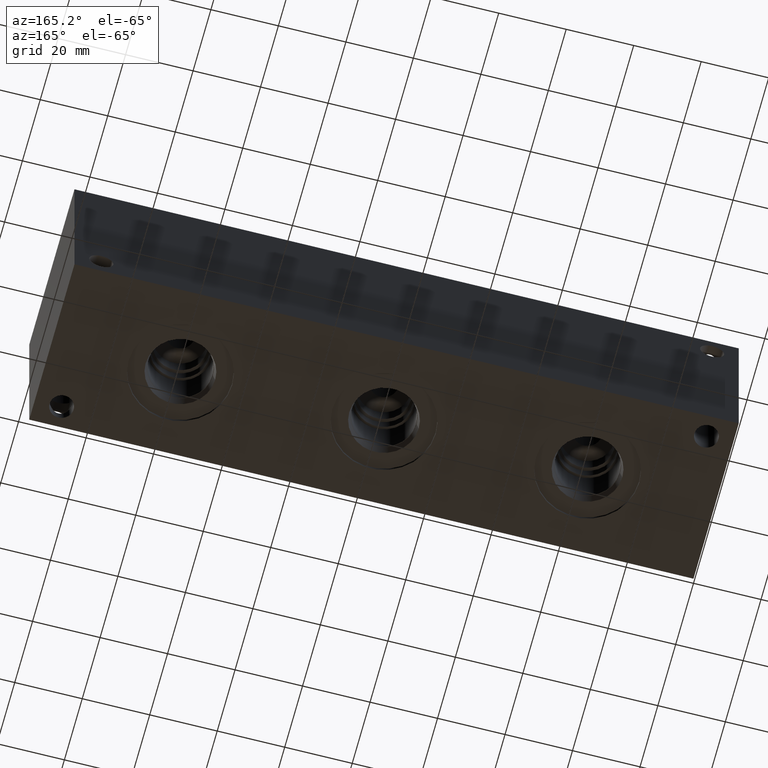
[diagram: clean part render]
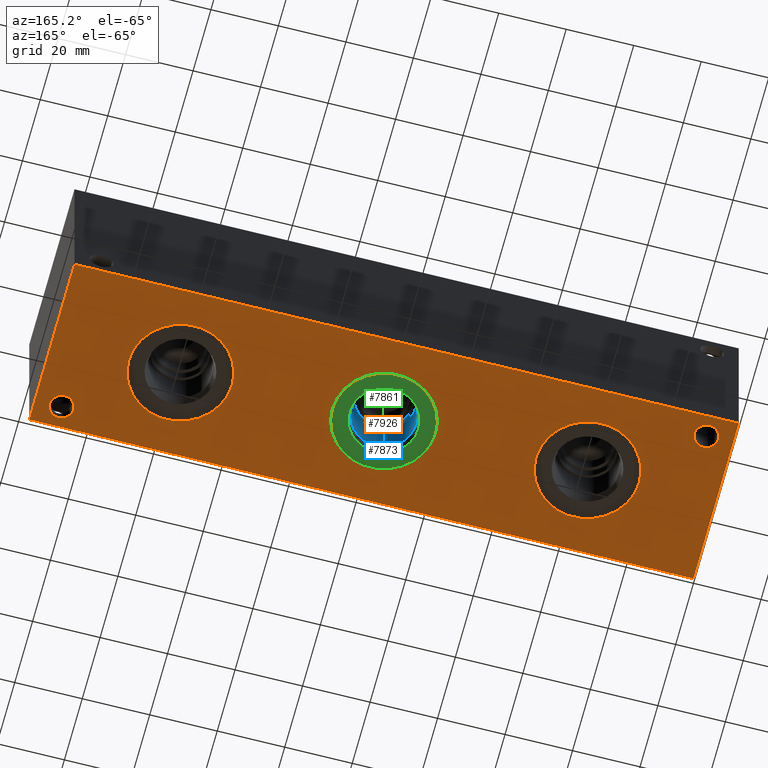
[diagram: same view with three faces highlighted in distinct colors, each labeled with its STEP entity id]
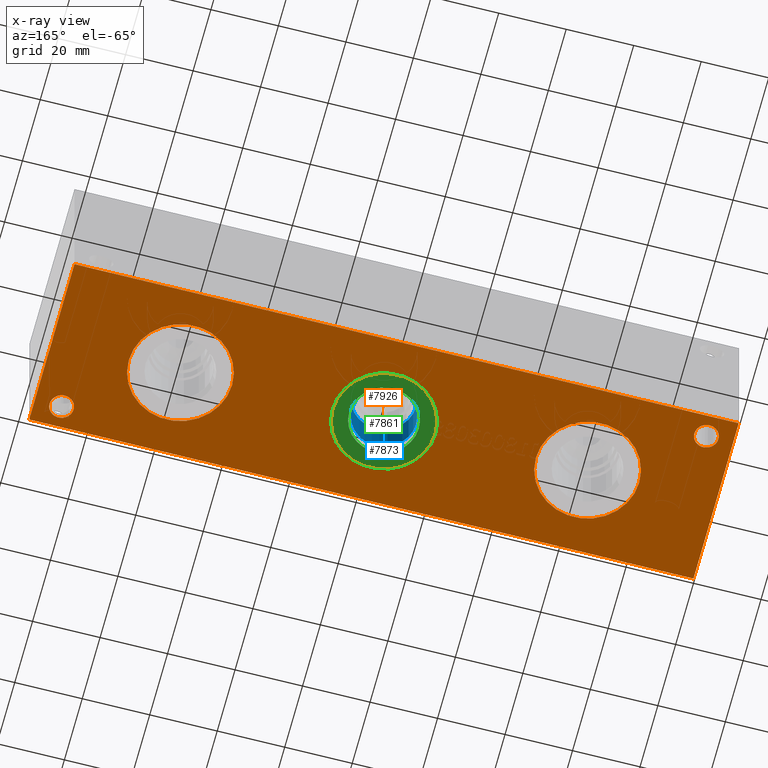
[diagram: x-ray of the same camera — body ghosted, the three highlighted faces saturated]
A machine part, auxiliary view with three faces highlighted in distinct colors.
The next image is the same camera in x-ray (body ghosted, the three faces saturated) — at least one of them is partly hidden behind the body in this view.
Their STEP definitions:

[orange] entity #7926 — the highlighted planar face has unit normal (0, 0, 1).
#100=CIRCLE('',#8175,3.5687);
#101=CIRCLE('',#8177,3.5687);
#102=CIRCLE('',#8179,15.3162);
#103=CIRCLE('',#8180,15.3162);
#113=CIRCLE('',#8195,15.3162);
#114=CIRCLE('',#8196,15.3162);
#152=CIRCLE('',#8257,15.3162);
#153=CIRCLE('',#8258,15.3162);
#263=FACE_BOUND('',#1351,.T.);
#264=FACE_BOUND('',#1352,.T.);
#265=FACE_BOUND('',#1353,.T.);
#266=FACE_BOUND('',#1354,.T.);
#267=FACE_BOUND('',#1355,.T.);
#488=PLANE('',#8360);
#894=FACE_OUTER_BOUND('',#1350,.T.);
#1350=EDGE_LOOP('',(#7069,#7070,#7071,#7072));
#1351=EDGE_LOOP('',(#7073));
#1352=EDGE_LOOP('',(#7074));
#1353=EDGE_LOOP('',(#7075,#7076));
#1354=EDGE_LOOP('',(#7077,#7078));
#1355=EDGE_LOOP('',(#7079,#7080));
#2067=LINE('',#13750,#2786);
#2070=LINE('',#13755,#2789);
#2072=LINE('',#13759,#2791);
#2074=LINE('',#13762,#2793);
#2786=VECTOR('',#9904,10.);
#2789=VECTOR('',#9909,10.);
#2791=VECTOR('',#9913,10.);
#2793=VECTOR('',#9917,10.);
#3658=VERTEX_POINT('',#13398);
#3659=VERTEX_POINT('',#13402);
#3660=VERTEX_POINT('',#13406);
#3661=VERTEX_POINT('',#13407);
#3671=VERTEX_POINT('',#13437);
#3672=VERTEX_POINT('',#13438);
#3710=VERTEX_POINT('',#13557);
#3711=VERTEX_POINT('',#13558);
#3771=VERTEX_POINT('',#13748);
#3772=VERTEX_POINT('',#13749);
#3773=VERTEX_POINT('',#13754);
#3774=VERTEX_POINT('',#13758);
#4701=EDGE_CURVE('',#3658,#3658,#100,.T.);
#4703=EDGE_CURVE('',#3659,#3659,#101,.T.);
#4704=EDGE_CURVE('',#3660,#3661,#102,.T.);
#4705=EDGE_CURVE('',#3661,#3660,#103,.T.);
#4719=EDGE_CURVE('',#3671,#3672,#113,.T.);
#4720=EDGE_CURVE('',#3672,#3671,#114,.T.);
#4777=EDGE_CURVE('',#3710,#3711,#152,.T.);
#4778=EDGE_CURVE('',#3711,#3710,#153,.T.);
#4869=EDGE_CURVE('',#3771,#3772,#2067,.T.);
#4872=EDGE_CURVE('',#3773,#3771,#2070,.T.);
#4874=EDGE_CURVE('',#3774,#3773,#2072,.T.);
#4876=EDGE_CURVE('',#3772,#3774,#2074,.T.);
#7069=ORIENTED_EDGE('',*,*,#4876,.F.);
#7070=ORIENTED_EDGE('',*,*,#4869,.F.);
#7071=ORIENTED_EDGE('',*,*,#4872,.F.);
#7072=ORIENTED_EDGE('',*,*,#4874,.F.);
#7073=ORIENTED_EDGE('',*,*,#4701,.T.);
#7074=ORIENTED_EDGE('',*,*,#4703,.T.);
#7075=ORIENTED_EDGE('',*,*,#4704,.T.);
#7076=ORIENTED_EDGE('',*,*,#4705,.T.);
#7077=ORIENTED_EDGE('',*,*,#4719,.T.);
#7078=ORIENTED_EDGE('',*,*,#4720,.T.);
#7079=ORIENTED_EDGE('',*,*,#4777,.T.);
#7080=ORIENTED_EDGE('',*,*,#4778,.T.);
#7926=ADVANCED_FACE('',(#894,#263,#264,#265,#266,#267),#488,.F.);
#8175=AXIS2_PLACEMENT_3D('',#13400,#9487,#9488);
#8177=AXIS2_PLACEMENT_3D('',#13404,#9492,#9493);
#8179=AXIS2_PLACEMENT_3D('',#13408,#9496,#9497);
#8180=AXIS2_PLACEMENT_3D('',#13409,#9498,#9499);
#8195=AXIS2_PLACEMENT_3D('',#13439,#9532,#9533);
#8196=AXIS2_PLACEMENT_3D('',#13440,#9534,#9535);
#8257=AXIS2_PLACEMENT_3D('',#13559,#9675,#9676);
#8258=AXIS2_PLACEMENT_3D('',#13560,#9677,#9678);
#8360=AXIS2_PLACEMENT_3D('',#13764,#9920,#9921);
#9487=DIRECTION('center_axis',(0.,0.,1.));
#9488=DIRECTION('ref_axis',(1.,0.,0.));
#9492=DIRECTION('center_axis',(0.,0.,1.));
#9493=DIRECTION('ref_axis',(1.,0.,0.));
#9496=DIRECTION('center_axis',(0.,0.,1.));
#9497=DIRECTION('ref_axis',(1.,0.,0.));
#9498=DIRECTION('center_axis',(0.,0.,1.));
#9499=DIRECTION('ref_axis',(1.,0.,0.));
#9532=DIRECTION('center_axis',(0.,0.,1.));
#9533=DIRECTION('ref_axis',(1.,0.,0.));
#9534=DIRECTION('center_axis',(0.,0.,1.));
#9535=DIRECTION('ref_axis',(1.,0.,0.));
#9675=DIRECTION('center_axis',(0.,0.,1.));
#9676=DIRECTION('ref_axis',(1.,0.,0.));
#9677=DIRECTION('center_axis',(0.,0.,1.));
#9678=DIRECTION('ref_axis',(1.,0.,0.));
#9904=DIRECTION('',(0.,-1.,0.));
#9909=DIRECTION('',(-1.,0.,0.));
#9913=DIRECTION('',(0.,1.,0.));
#9917=DIRECTION('',(1.,0.,0.));
#9920=DIRECTION('center_axis',(0.,0.,1.));
#9921=DIRECTION('ref_axis',(1.,0.,0.));
#13398=CARTESIAN_POINT('',(4.3561,44.45,0.));
#13400=CARTESIAN_POINT('Origin',(7.9248,44.45,0.));
#13402=CARTESIAN_POINT('',(185.3565,6.35,0.));
#13404=CARTESIAN_POINT('Origin',(188.9252,6.35,0.));
#13406=CARTESIAN_POINT('',(174.0662,25.4,0.));
#13407=CARTESIAN_POINT('',(143.4338,25.4,0.));
#13408=CARTESIAN_POINT('Origin',(158.75,25.4,0.));
#13409=CARTESIAN_POINT('Origin',(158.75,25.4,0.));
#13437=CARTESIAN_POINT('',(113.7412,25.4,0.));
#13438=CARTESIAN_POINT('',(83.1088,25.4,0.));
#13439=CARTESIAN_POINT('Origin',(98.425,25.4,0.));
#13440=CARTESIAN_POINT('Origin',(98.425,25.4,0.));
#13557=CARTESIAN_POINT('',(53.4162,25.4,0.));
#13558=CARTESIAN_POINT('',(22.7838,25.4,0.));
#13559=CARTESIAN_POINT('Origin',(38.1,25.4,0.));
#13560=CARTESIAN_POINT('Origin',(38.1,25.4,0.));
#13748=CARTESIAN_POINT('',(0.,50.8,0.));
#13749=CARTESIAN_POINT('',(0.,0.,0.));
#13750=CARTESIAN_POINT('',(0.,50.8,0.));
#13754=CARTESIAN_POINT('',(196.85,50.8,0.));
#13755=CARTESIAN_POINT('',(196.85,50.8,0.));
#13758=CARTESIAN_POINT('',(196.85,0.,0.));
#13759=CARTESIAN_POINT('',(196.85,0.,0.));
#13762=CARTESIAN_POINT('',(0.,0.,0.));
#13764=CARTESIAN_POINT('Origin',(98.425,25.4,0.));

[blue] entity #7873 — the highlighted cylindrical surface (bore or boss wall) has radius 9.525 mm, axis along (0, 0, -1).
#61=CYLINDRICAL_SURFACE('',#8235,9.525);
#123=CIRCLE('',#8209,9.525);
#138=CIRCLE('',#8232,9.525);
#139=CIRCLE('',#8233,9.525);
#841=FACE_OUTER_BOUND('',#1284,.T.);
#1284=EDGE_LOOP('',(#6806,#6807,#6808,#6809,#6810));
#2028=LINE('',#13517,#2747);
#2747=VECTOR('',#9625,9.525);
#3681=VERTEX_POINT('',#13464);
#3696=VERTEX_POINT('',#13510);
#3697=VERTEX_POINT('',#13511);
#4733=EDGE_CURVE('',#3681,#3681,#123,.T.);
#4755=EDGE_CURVE('',#3696,#3697,#138,.T.);
#4756=EDGE_CURVE('',#3697,#3696,#139,.T.);
#4758=EDGE_CURVE('',#3681,#3697,#2028,.T.);
#6806=ORIENTED_EDGE('',*,*,#4733,.T.);
#6807=ORIENTED_EDGE('',*,*,#4758,.T.);
#6808=ORIENTED_EDGE('',*,*,#4755,.F.);
#6809=ORIENTED_EDGE('',*,*,#4756,.F.);
#6810=ORIENTED_EDGE('',*,*,#4758,.F.);
#7873=ADVANCED_FACE('',(#841),#61,.F.);
#8209=AXIS2_PLACEMENT_3D('',#13466,#9564,#9565);
#8232=AXIS2_PLACEMENT_3D('',#13512,#9617,#9618);
#8233=AXIS2_PLACEMENT_3D('',#13513,#9619,#9620);
#8235=AXIS2_PLACEMENT_3D('',#13516,#9623,#9624);
#9564=DIRECTION('center_axis',(0.,0.,-1.));
#9565=DIRECTION('ref_axis',(1.,0.,0.));
#9617=DIRECTION('center_axis',(0.,0.,-1.));
#9618=DIRECTION('ref_axis',(1.,0.,0.));
#9619=DIRECTION('center_axis',(0.,0.,-1.));
#9620=DIRECTION('ref_axis',(1.,0.,0.));
#9623=DIRECTION('center_axis',(0.,0.,-1.));
#9624=DIRECTION('ref_axis',(1.,0.,0.));
#9625=DIRECTION('',(0.,0.,1.));
#13464=CARTESIAN_POINT('',(88.9,25.4,3.4036));
#13466=CARTESIAN_POINT('Origin',(98.425,25.4,3.4036));
#13510=CARTESIAN_POINT('',(107.95,25.4,15.0622));
#13511=CARTESIAN_POINT('',(88.9,25.4,15.0622));
#13512=CARTESIAN_POINT('Origin',(98.425,25.4,15.0622));
#13513=CARTESIAN_POINT('Origin',(98.425,25.4,15.0622));
#13516=CARTESIAN_POINT('Origin',(98.425,25.4,7.5311));
#13517=CARTESIAN_POINT('',(88.9,25.4,7.5311));

[green] entity #7861 — the highlighted planar face has unit normal (0, 0, 1).
#115=CIRCLE('',#8197,15.3162);
#116=CIRCLE('',#8198,15.3162);
#117=CIRCLE('',#8200,10.2997);
#118=CIRCLE('',#8201,10.2997);
#248=FACE_BOUND('',#1271,.T.);
#472=PLANE('',#8199);
#829=FACE_OUTER_BOUND('',#1270,.T.);
#1270=EDGE_LOOP('',(#6747,#6748));
#1271=EDGE_LOOP('',(#6749,#6750));
#3673=VERTEX_POINT('',#13441);
#3674=VERTEX_POINT('',#13443);
#3675=VERTEX_POINT('',#13447);
#3676=VERTEX_POINT('',#13448);
#4722=EDGE_CURVE('',#3673,#3674,#115,.T.);
#4723=EDGE_CURVE('',#3674,#3673,#116,.T.);
#4724=EDGE_CURVE('',#3675,#3676,#117,.T.);
#4725=EDGE_CURVE('',#3676,#3675,#118,.T.);
#6747=ORIENTED_EDGE('',*,*,#4723,.F.);
#6748=ORIENTED_EDGE('',*,*,#4722,.F.);
#6749=ORIENTED_EDGE('',*,*,#4724,.T.);
#6750=ORIENTED_EDGE('',*,*,#4725,.T.);
#7861=ADVANCED_FACE('',(#829,#248),#472,.F.);
#8197=AXIS2_PLACEMENT_3D('',#13444,#9537,#9538);
#8198=AXIS2_PLACEMENT_3D('',#13445,#9539,#9540);
#8199=AXIS2_PLACEMENT_3D('',#13446,#9541,#9542);
#8200=AXIS2_PLACEMENT_3D('',#13449,#9543,#9544);
#8201=AXIS2_PLACEMENT_3D('',#13450,#9545,#9546);
#9537=DIRECTION('center_axis',(0.,0.,1.));
#9538=DIRECTION('ref_axis',(1.,0.,0.));
#9539=DIRECTION('center_axis',(0.,0.,1.));
#9540=DIRECTION('ref_axis',(1.,0.,0.));
#9541=DIRECTION('center_axis',(0.,0.,1.));
#9542=DIRECTION('ref_axis',(1.,0.,0.));
#9543=DIRECTION('center_axis',(0.,0.,1.));
#9544=DIRECTION('ref_axis',(1.,0.,0.));
#9545=DIRECTION('center_axis',(0.,0.,1.));
#9546=DIRECTION('ref_axis',(1.,0.,0.));
#13441=CARTESIAN_POINT('',(83.1088,25.4,0.7874));
#13443=CARTESIAN_POINT('',(113.7412,25.4,0.7874));
#13444=CARTESIAN_POINT('Origin',(98.425,25.4,0.7874));
#13445=CARTESIAN_POINT('Origin',(98.425,25.4,0.7874));
#13446=CARTESIAN_POINT('Origin',(108.7247,25.4,0.7874));
#13447=CARTESIAN_POINT('',(108.7247,25.4,0.7874));
#13448=CARTESIAN_POINT('',(88.1253,25.4,0.787399999999997));
#13449=CARTESIAN_POINT('Origin',(98.425,25.4,0.7874));
#13450=CARTESIAN_POINT('Origin',(98.425,25.4,0.7874));